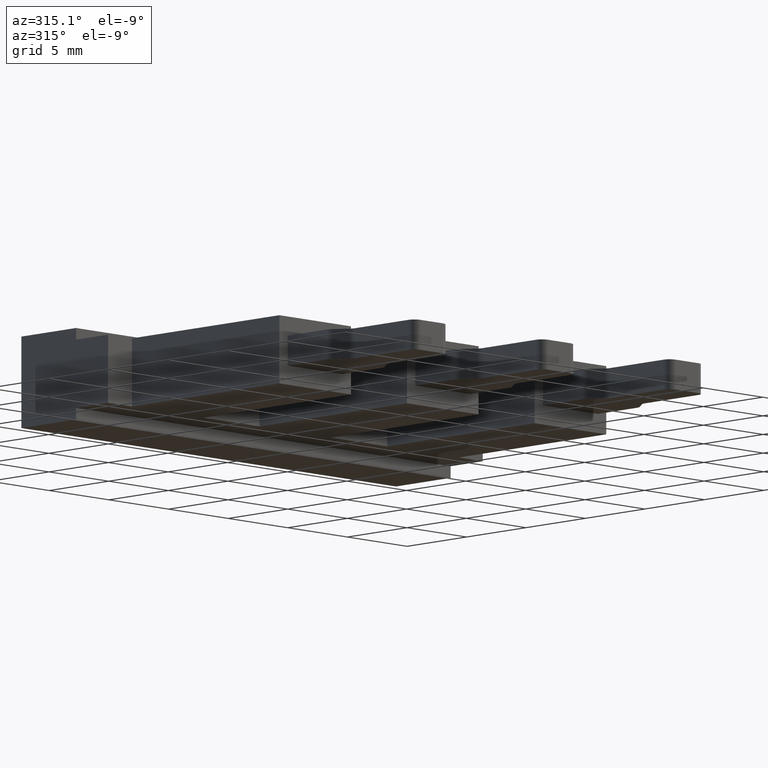
[diagram: clean part render]
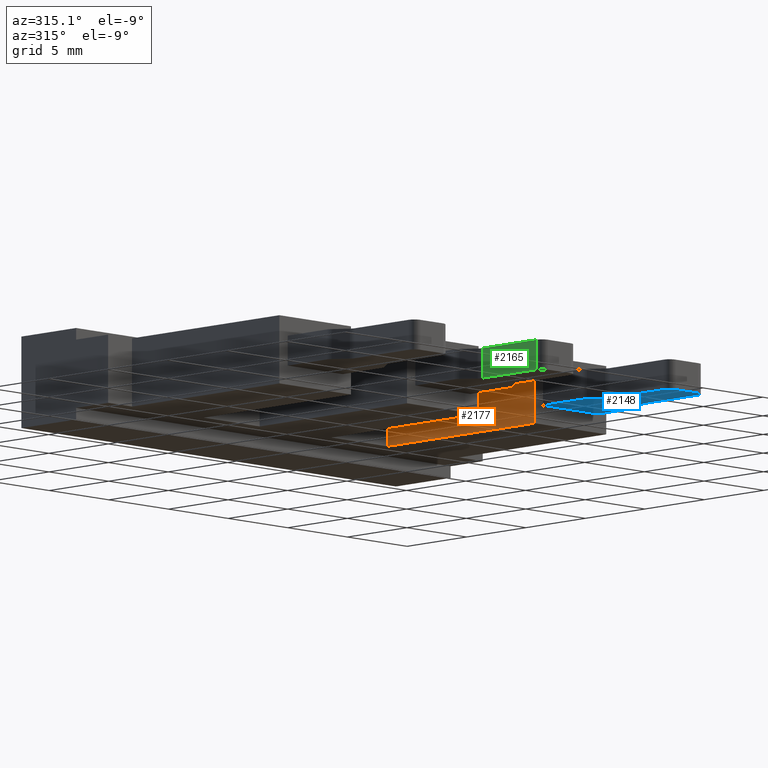
[diagram: same view with three faces highlighted in distinct colors, each labeled with its STEP entity id]
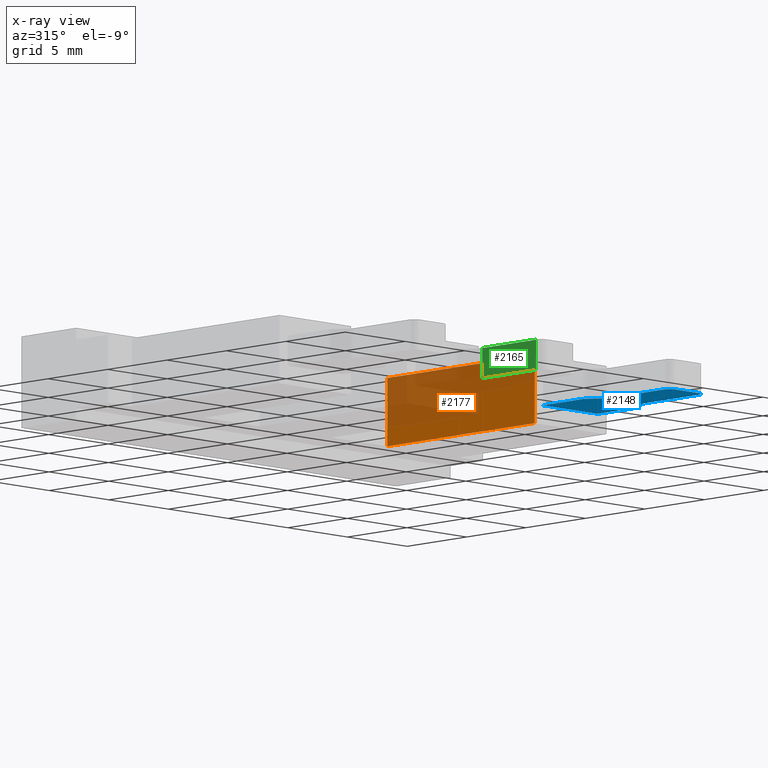
[diagram: x-ray of the same camera — body ghosted, the three highlighted faces saturated]
A machine part, auxiliary view with three faces highlighted in distinct colors.
The next image is the same camera in x-ray (body ghosted, the three faces saturated) — at least one of them is partly hidden behind the body in this view.
Their STEP definitions:

[orange] entity #2177 — the highlighted planar face has unit normal (1, -0, 0).
#71 = LINE ( 'NONE', #72, #979 ) ;
#72 = CARTESIAN_POINT ( 'NONE',  ( 23.39999999999999900, -12.40000000000000000, 4.100000000000000500 ) ) ;
#77 = DIRECTION ( 'NONE',  ( 0.0000000000000000000, 0.0000000000000000000, -1.000000000000000000 ) ) ;
#136 = EDGE_LOOP ( 'NONE', ( #423, #424, #401, #478 ) ) ;
#149 = VERTEX_POINT ( 'NONE', #190 ) ;
#152 = VERTEX_POINT ( 'NONE', #648 ) ;
#160 = VERTEX_POINT ( 'NONE', #693 ) ;
#190 = CARTESIAN_POINT ( 'NONE',  ( 23.39999999999999900, 9.223609349453271000E-016, 0.0000000000000000000 ) ) ;
#224 = VERTEX_POINT ( 'NONE', #770 ) ;
#401 = ORIENTED_EDGE ( 'NONE', *, *, #1972, .F. ) ;
#423 = ORIENTED_EDGE ( 'NONE', *, *, #2020, .F. ) ;
#424 = ORIENTED_EDGE ( 'NONE', *, *, #1964, .F. ) ;
#478 = ORIENTED_EDGE ( 'NONE', *, *, #2042, .T. ) ;
#648 = CARTESIAN_POINT ( 'NONE',  ( 23.39999999999999900, -12.40000000000000000, 4.100000000000000500 ) ) ;
#693 = CARTESIAN_POINT ( 'NONE',  ( 23.39999999999999900, 9.223609349453271000E-016, 4.100000000000000500 ) ) ;
#770 = CARTESIAN_POINT ( 'NONE',  ( 23.39999999999999900, -12.40000000000000000, 0.0000000000000000000 ) ) ;
#800 = LINE ( 'NONE', #803, #936 ) ;
#803 = CARTESIAN_POINT ( 'NONE',  ( 23.39999999999999900, -12.49999999999999800, 4.100000000000000500 ) ) ;
#807 = DIRECTION ( 'NONE',  ( -0.0000000000000000000, -1.000000000000000000, -0.0000000000000000000 ) ) ;
#816 = DIRECTION ( 'NONE',  ( -0.0000000000000000000, -0.0000000000000000000, 1.000000000000000000 ) ) ;
#829 = CARTESIAN_POINT ( 'NONE',  ( 23.39999999999999900, 1.856154119295185200E-015, 4.100000000000000500 ) ) ;
#842 = LINE ( 'NONE', #829, #938 ) ;
#936 = VECTOR ( 'NONE', #807, 1000.000000000000000 ) ;
#938 = VECTOR ( 'NONE', #816, 1000.000000000000000 ) ;
#979 = VECTOR ( 'NONE', #77, 1000.000000000000000 ) ;
#1022 = VECTOR ( 'NONE', #1344, 1000.000000000000000 ) ;
#1206 = AXIS2_PLACEMENT_3D ( 'NONE', #1807, #1786, #1778 ) ;
#1304 = LINE ( 'NONE', #1305, #1022 ) ;
#1305 = CARTESIAN_POINT ( 'NONE',  ( 23.39999999999999900, 4.173744683200197900E-015, 0.0000000000000000000 ) ) ;
#1344 = DIRECTION ( 'NONE',  ( 0.0000000000000000000, -1.000000000000000000, -0.0000000000000000000 ) ) ;
#1773 = FACE_OUTER_BOUND ( 'NONE', #136, .T. ) ;
#1778 = DIRECTION ( 'NONE',  ( 0.0000000000000000000, 0.0000000000000000000, -1.000000000000000000 ) ) ;
#1785 = PLANE ( 'NONE',  #1206 ) ;
#1786 = DIRECTION ( 'NONE',  ( 1.000000000000000000, -0.0000000000000000000, 0.0000000000000000000 ) ) ;
#1807 = CARTESIAN_POINT ( 'NONE',  ( 23.39999999999999900, -12.49999999999999800, 4.100000000000000500 ) ) ;
#1964 = EDGE_CURVE ( 'NONE', #160, #152, #800, .T. ) ;
#1972 = EDGE_CURVE ( 'NONE', #149, #160, #842, .T. ) ;
#2020 = EDGE_CURVE ( 'NONE', #152, #224, #71, .T. ) ;
#2042 = EDGE_CURVE ( 'NONE', #149, #224, #1304, .T. ) ;
#2177 = ADVANCED_FACE ( 'NONE', ( #1773 ), #1785, .F. ) ;

[blue] entity #2148 — the highlighted planar face has unit normal (-0, 0, 1).
#20 = LINE ( 'NONE', #21, #995 ) ;
#21 = CARTESIAN_POINT ( 'NONE',  ( 24.09999999999999800, -2.699999999999990400, 1.149999999999979500 ) ) ;
#26 = DIRECTION ( 'NONE',  ( -1.000000000000000000, 0.0000000000000000000, 0.0000000000000000000 ) ) ;
#28 = CARTESIAN_POINT ( 'NONE',  ( 27.34999999999999800, -21.69999999999998500, 1.149999999999979900 ) ) ;
#33 = DIRECTION ( 'NONE',  ( 0.0000000000000000000, -1.000000000000000000, 0.0000000000000000000 ) ) ;
#34 = LINE ( 'NONE', #51, #973 ) ;
#35 = LINE ( 'NONE', #48, #992 ) ;
#36 = DIRECTION ( 'NONE',  ( -0.6000000000001560800, 0.7999999999998829200, 0.0000000000000000000 ) ) ;
#43 = DIRECTION ( 'NONE',  ( 0.0000000000000000000, -1.665334536937734800E-016, 1.000000000000000000 ) ) ;
#44 = CARTESIAN_POINT ( 'NONE',  ( 28.34999999999966700, -17.16666666666699800, 1.149999999999979700 ) ) ;
#48 = CARTESIAN_POINT ( 'NONE',  ( 24.20000000000009900, -16.00000000000023800, 1.149999999999979500 ) ) ;
#50 = DIRECTION ( 'NONE',  ( -0.0000000000000000000, -0.0000000000000000000, 1.000000000000000000 ) ) ;
#51 = CARTESIAN_POINT ( 'NONE',  ( 28.70000000000000300, -22.20000000000002800, 1.149999999999979900 ) ) ;
#53 = DIRECTION ( 'NONE',  ( 1.000000000000000000, 0.0000000000000000000, 5.656706986880892600E-016 ) ) ;
#62 = DIRECTION ( 'NONE',  ( 0.0000000000000000000, 0.0000000000000000000, 1.000000000000000000 ) ) ;
#65 = DIRECTION ( 'NONE',  ( 1.000000000000000000, 0.0000000000000000000, 0.0000000000000000000 ) ) ;
#70 = CARTESIAN_POINT ( 'NONE',  ( 28.19999999999999600, -15.70000000000024100, 1.149999999999979900 ) ) ;
#73 = DIRECTION ( 'NONE',  ( 0.0000000000000000000, 1.000000000000000000, 0.0000000000000000000 ) ) ;
#127 = EDGE_LOOP ( 'NONE', ( #334, #436, #409, #408, #394, #418, #416, #452, #445, #330, #437, #342, #374, #410 ) ) ;
#141 = VERTEX_POINT ( 'NONE', #673 ) ;
#144 = VERTEX_POINT ( 'NONE', #692 ) ;
#156 = VERTEX_POINT ( 'NONE', #669 ) ;
#201 = VERTEX_POINT ( 'NONE', #653 ) ;
#203 = VERTEX_POINT ( 'NONE', #672 ) ;
#209 = VERTEX_POINT ( 'NONE', #660 ) ;
#213 = VERTEX_POINT ( 'NONE', #684 ) ;
#228 = VERTEX_POINT ( 'NONE', #719 ) ;
#229 = VERTEX_POINT ( 'NONE', #764 ) ;
#235 = VERTEX_POINT ( 'NONE', #766 ) ;
#256 = VERTEX_POINT ( 'NONE', #732 ) ;
#260 = VERTEX_POINT ( 'NONE', #720 ) ;
#261 = VERTEX_POINT ( 'NONE', #721 ) ;
#299 = VERTEX_POINT ( 'NONE', #745 ) ;
#330 = ORIENTED_EDGE ( 'NONE', *, *, #1997, .T. ) ;
#334 = ORIENTED_EDGE ( 'NONE', *, *, #2064, .F. ) ;
#342 = ORIENTED_EDGE ( 'NONE', *, *, #2047, .F. ) ;
#374 = ORIENTED_EDGE ( 'NONE', *, *, #2014, .T. ) ;
#394 = ORIENTED_EDGE ( 'NONE', *, *, #2055, .F. ) ;
#408 = ORIENTED_EDGE ( 'NONE', *, *, #2005, .T. ) ;
#409 = ORIENTED_EDGE ( 'NONE', *, *, #2056, .T. ) ;
#410 = ORIENTED_EDGE ( 'NONE', *, *, #1990, .F. ) ;
#416 = ORIENTED_EDGE ( 'NONE', *, *, #2013, .F. ) ;
#418 = ORIENTED_EDGE ( 'NONE', *, *, #2009, .F. ) ;
#436 = ORIENTED_EDGE ( 'NONE', *, *, #2016, .F. ) ;
#437 = ORIENTED_EDGE ( 'NONE', *, *, #2011, .T. ) ;
#445 = ORIENTED_EDGE ( 'NONE', *, *, #2057, .F. ) ;
#452 = ORIENTED_EDGE ( 'NONE', *, *, #2052, .F. ) ;
#653 = CARTESIAN_POINT ( 'NONE',  ( 24.95000000000010900, -21.69999999999998500, 1.149999999999977500 ) ) ;
#660 = CARTESIAN_POINT ( 'NONE',  ( 24.09999999999999800, -15.70000000000010600, 1.149999999999979500 ) ) ;
#669 = CARTESIAN_POINT ( 'NONE',  ( 24.85000000000016500, -16.86666666666663900, 1.149999999999979300 ) ) ;
#672 = CARTESIAN_POINT ( 'NONE',  ( 27.85000000000000100, -21.69999999999998500, 1.149999999999979700 ) ) ;
#673 = CARTESIAN_POINT ( 'NONE',  ( 28.59999999999994500, -16.00000000000031600, 1.149999999999979900 ) ) ;
#684 = CARTESIAN_POINT ( 'NONE',  ( 24.95000000000022300, -17.16666666666672800, 1.149999999999978600 ) ) ;
#692 = CARTESIAN_POINT ( 'NONE',  ( 27.94999999999972600, -16.86666666666691900, 1.149999999999979900 ) ) ;
#719 = CARTESIAN_POINT ( 'NONE',  ( 27.34999999999999800, -22.20000000000000600, 1.149999999999979900 ) ) ;
#720 = CARTESIAN_POINT ( 'NONE',  ( 27.84999999999983400, -17.16666666666701200, 1.149999999999979700 ) ) ;
#721 = CARTESIAN_POINT ( 'NONE',  ( 24.20000000000005600, -16.00000000000018500, 1.149999999999979500 ) ) ;
#732 = CARTESIAN_POINT ( 'NONE',  ( 28.70000000000000300, -15.70000000000024100, 1.149999999999979900 ) ) ;
#745 = CARTESIAN_POINT ( 'NONE',  ( 25.45000000000007700, -22.20000000000000600, 1.149999999999977500 ) ) ;
#764 = CARTESIAN_POINT ( 'NONE',  ( 28.70000000000000300, -12.40000000000000000, 1.149999999999979900 ) ) ;
#766 = CARTESIAN_POINT ( 'NONE',  ( 24.09999999999999800, -12.40000000000000000, 1.149999999999979500 ) ) ;
#871 = DIRECTION ( 'NONE',  ( -1.000000000000000000, 0.0000000000000000000, -5.656706986880892600E-016 ) ) ;
#900 = LINE ( 'NONE', #902, #953 ) ;
#902 = CARTESIAN_POINT ( 'NONE',  ( 9.370690409942497500, -12.40000000000000000, 1.149999999999969300 ) ) ;
#909 = CARTESIAN_POINT ( 'NONE',  ( 24.45000000000022300, -17.16666666666671400, 1.149999999999979300 ) ) ;
#910 = DIRECTION ( 'NONE',  ( 1.000000000000000000, 0.0000000000000000000, 0.0000000000000000000 ) ) ;
#911 = DIRECTION ( 'NONE',  ( 0.0000000000000000000, 0.0000000000000000000, 1.000000000000000000 ) ) ;
#953 = VECTOR ( 'NONE', #871, 1000.000000000000000 ) ;
#960 = CIRCLE ( 'NONE', #966, 0.5000000000000004400 ) ;
#966 = AXIS2_PLACEMENT_3D ( 'NONE', #70, #62, #65 ) ;
#969 = AXIS2_PLACEMENT_3D ( 'NONE', #44, #50, #26 ) ;
#970 = AXIS2_PLACEMENT_3D ( 'NONE', #909, #911, #910 ) ;
#973 = VECTOR ( 'NONE', #53, 1000.000000000000000 ) ;
#975 = CIRCLE ( 'NONE', #976, 0.5000000000000282000 ) ;
#976 = AXIS2_PLACEMENT_3D ( 'NONE', #28, #43, #33 ) ;
#983 = CIRCLE ( 'NONE', #969, 0.5000000000000004400 ) ;
#990 = CIRCLE ( 'NONE', #970, 0.5000000000000004400 ) ;
#992 = VECTOR ( 'NONE', #36, 1000.000000000000100 ) ;
#995 = VECTOR ( 'NONE', #73, 1000.000000000000000 ) ;
#999 = AXIS2_PLACEMENT_3D ( 'NONE', #1342, #1300, #1309 ) ;
#1016 = CIRCLE ( 'NONE', #999, 0.5000000000000004400 ) ;
#1033 = VECTOR ( 'NONE', #1367, 1000.000000000000000 ) ;
#1038 = AXIS2_PLACEMENT_3D ( 'NONE', #1334, #1335, #1336 ) ;
#1039 = CIRCLE ( 'NONE', #1038, 0.5000000000000282000 ) ;
#1041 = VECTOR ( 'NONE', #1361, 1000.000000000000000 ) ;
#1053 = VECTOR ( 'NONE', #1347, 1000.000000000000000 ) ;
#1054 = VECTOR ( 'NONE', #1389, 1000.000000000000100 ) ;
#1134 = AXIS2_PLACEMENT_3D ( 'NONE', #1651, #1630, #1641 ) ;
#1300 = DIRECTION ( 'NONE',  ( -0.0000000000000000000, -0.0000000000000000000, 1.000000000000000000 ) ) ;
#1309 = DIRECTION ( 'NONE',  ( -1.000000000000000000, 0.0000000000000000000, 0.0000000000000000000 ) ) ;
#1334 = CARTESIAN_POINT ( 'NONE',  ( 25.45000000000007700, -21.69999999999998500, 1.149999999999977500 ) ) ;
#1335 = DIRECTION ( 'NONE',  ( -0.0000000000000000000, -0.0000000000000000000, 1.000000000000000000 ) ) ;
#1336 = DIRECTION ( 'NONE',  ( -1.000000000000000000, 0.0000000000000000000, 0.0000000000000000000 ) ) ;
#1342 = CARTESIAN_POINT ( 'NONE',  ( 24.59999999999999800, -15.70000000000010600, 1.149999999999979500 ) ) ;
#1347 = DIRECTION ( 'NONE',  ( 0.0000000000000000000, 1.000000000000000000, -0.0000000000000000000 ) ) ;
#1354 = LINE ( 'NONE', #1360, #1053 ) ;
#1355 = LINE ( 'NONE', #1373, #1054 ) ;
#1360 = CARTESIAN_POINT ( 'NONE',  ( 28.70000000000000300, -2.699999999999990400, 1.149999999999979900 ) ) ;
#1361 = DIRECTION ( 'NONE',  ( -0.0000000000000000000, -1.000000000000000000, 0.0000000000000000000 ) ) ;
#1367 = DIRECTION ( 'NONE',  ( 0.0000000000000000000, 1.000000000000000000, -0.0000000000000000000 ) ) ;
#1368 = LINE ( 'NONE', #1379, #1033 ) ;
#1373 = CARTESIAN_POINT ( 'NONE',  ( 28.60000000000000100, -16.00000000000023800, 1.149999999999979900 ) ) ;
#1379 = CARTESIAN_POINT ( 'NONE',  ( 27.85000000000000100, -2.699999999999990400, 1.149999999999979700 ) ) ;
#1380 = LINE ( 'NONE', #1387, #1041 ) ;
#1387 = CARTESIAN_POINT ( 'NONE',  ( 24.95000000000022300, -2.699999999999990400, 1.149999999999977900 ) ) ;
#1389 = DIRECTION ( 'NONE',  ( -0.6000000000001560800, -0.7999999999998829200, 0.0000000000000000000 ) ) ;
#1630 = DIRECTION ( 'NONE',  ( -5.656706986880892600E-016, 0.0000000000000000000, 1.000000000000000000 ) ) ;
#1641 = DIRECTION ( 'NONE',  ( 1.000000000000000000, 0.0000000000000000000, 5.656706986880892600E-016 ) ) ;
#1650 = FACE_OUTER_BOUND ( 'NONE', #127, .T. ) ;
#1651 = CARTESIAN_POINT ( 'NONE',  ( 28.70000000000000300, -2.699999999999990400, 1.149999999999979900 ) ) ;
#1665 = PLANE ( 'NONE',  #1134 ) ;
#1990 = EDGE_CURVE ( 'NONE', #229, #235, #900, .T. ) ;
#1997 = EDGE_CURVE ( 'NONE', #213, #156, #990, .T. ) ;
#2005 = EDGE_CURVE ( 'NONE', #144, #260, #983, .T. ) ;
#2009 = EDGE_CURVE ( 'NONE', #228, #203, #975, .T. ) ;
#2011 = EDGE_CURVE ( 'NONE', #156, #261, #35, .T. ) ;
#2013 = EDGE_CURVE ( 'NONE', #299, #228, #34, .T. ) ;
#2014 = EDGE_CURVE ( 'NONE', #209, #235, #20, .T. ) ;
#2016 = EDGE_CURVE ( 'NONE', #141, #256, #960, .T. ) ;
#2047 = EDGE_CURVE ( 'NONE', #209, #261, #1016, .T. ) ;
#2052 = EDGE_CURVE ( 'NONE', #201, #299, #1039, .T. ) ;
#2055 = EDGE_CURVE ( 'NONE', #203, #260, #1368, .T. ) ;
#2056 = EDGE_CURVE ( 'NONE', #141, #144, #1355, .T. ) ;
#2057 = EDGE_CURVE ( 'NONE', #213, #201, #1380, .T. ) ;
#2064 = EDGE_CURVE ( 'NONE', #256, #229, #1354, .T. ) ;
#2148 = ADVANCED_FACE ( 'NONE', ( #1650 ), #1665, .F. ) ;

[green] entity #2165 — the highlighted planar face has unit normal (1, -0, 0).
#87 = EDGE_LOOP ( 'NONE', ( #639, #567, #633, #548 ) ) ;
#215 = VERTEX_POINT ( 'NONE', #654 ) ;
#262 = VERTEX_POINT ( 'NONE', #743 ) ;
#263 = VERTEX_POINT ( 'NONE', #754 ) ;
#271 = VERTEX_POINT ( 'NONE', #747 ) ;
#548 = ORIENTED_EDGE ( 'NONE', *, *, #2185, .T. ) ;
#567 = ORIENTED_EDGE ( 'NONE', *, *, #2135, .T. ) ;
#633 = ORIENTED_EDGE ( 'NONE', *, *, #2033, .F. ) ;
#639 = ORIENTED_EDGE ( 'NONE', *, *, #2122, .F. ) ;
#654 = CARTESIAN_POINT ( 'NONE',  ( 14.25000000000022000, -17.16666666666673200, 1.149999999999978600 ) ) ;
#743 = CARTESIAN_POINT ( 'NONE',  ( 14.25000000000011000, -21.69999999999998900, 1.149999999999977500 ) ) ;
#747 = CARTESIAN_POINT ( 'NONE',  ( 14.24999999999999800, -21.69999999999998900, 2.949999999999999700 ) ) ;
#754 = CARTESIAN_POINT ( 'NONE',  ( 14.25000000000011000, -17.16666666666673200, 2.949999999999999700 ) ) ;
#1011 = VECTOR ( 'NONE', #1288, 1000.000000000000000 ) ;
#1135 = VECTOR ( 'NONE', #1545, 1000.000000000000000 ) ;
#1161 = VECTOR ( 'NONE', #1591, 1000.000000000000000 ) ;
#1164 = AXIS2_PLACEMENT_3D ( 'NONE', #1749, #1741, #1732 ) ;
#1168 = VECTOR ( 'NONE', #1855, 1000.000000000000000 ) ;
#1279 = LINE ( 'NONE', #1299, #1011 ) ;
#1288 = DIRECTION ( 'NONE',  ( 0.0000000000000000000, -0.0000000000000000000, -1.000000000000000000 ) ) ;
#1299 = CARTESIAN_POINT ( 'NONE',  ( 14.24999999999999800, -21.69999999999998900, 2.949999999999999700 ) ) ;
#1545 = DIRECTION ( 'NONE',  ( -0.0000000000000000000, 0.0000000000000000000, 1.000000000000000000 ) ) ;
#1551 = LINE ( 'NONE', #1558, #1135 ) ;
#1558 = CARTESIAN_POINT ( 'NONE',  ( 14.25000000000022000, -17.16666666666674200, 2.949999999999999700 ) ) ;
#1591 = DIRECTION ( 'NONE',  ( -0.0000000000000000000, -1.000000000000000000, 0.0000000000000000000 ) ) ;
#1606 = CARTESIAN_POINT ( 'NONE',  ( 14.25000000000022000, -2.699999999999992200, 1.149999999999977900 ) ) ;
#1610 = LINE ( 'NONE', #1606, #1161 ) ;
#1718 = FACE_OUTER_BOUND ( 'NONE', #87, .T. ) ;
#1732 = DIRECTION ( 'NONE',  ( 4.898042755699460000E-014, 1.000000000000000000, 0.0000000000000000000 ) ) ;
#1739 = PLANE ( 'NONE',  #1164 ) ;
#1741 = DIRECTION ( 'NONE',  ( 1.000000000000000000, -4.898042755699460000E-014, 0.0000000000000000000 ) ) ;
#1749 = CARTESIAN_POINT ( 'NONE',  ( 14.24999999999999800, -21.69999999999998900, 2.949999999999999700 ) ) ;
#1822 = CARTESIAN_POINT ( 'NONE',  ( 14.24999999999999800, -2.699999999999992200, 2.949999999999999700 ) ) ;
#1836 = LINE ( 'NONE', #1822, #1168 ) ;
#1855 = DIRECTION ( 'NONE',  ( 0.0000000000000000000, 1.000000000000000000, 0.0000000000000000000 ) ) ;
#2033 = EDGE_CURVE ( 'NONE', #271, #262, #1279, .T. ) ;
#2122 = EDGE_CURVE ( 'NONE', #215, #263, #1551, .T. ) ;
#2135 = EDGE_CURVE ( 'NONE', #215, #262, #1610, .T. ) ;
#2165 = ADVANCED_FACE ( 'NONE', ( #1718 ), #1739, .F. ) ;
#2185 = EDGE_CURVE ( 'NONE', #271, #263, #1836, .T. ) ;